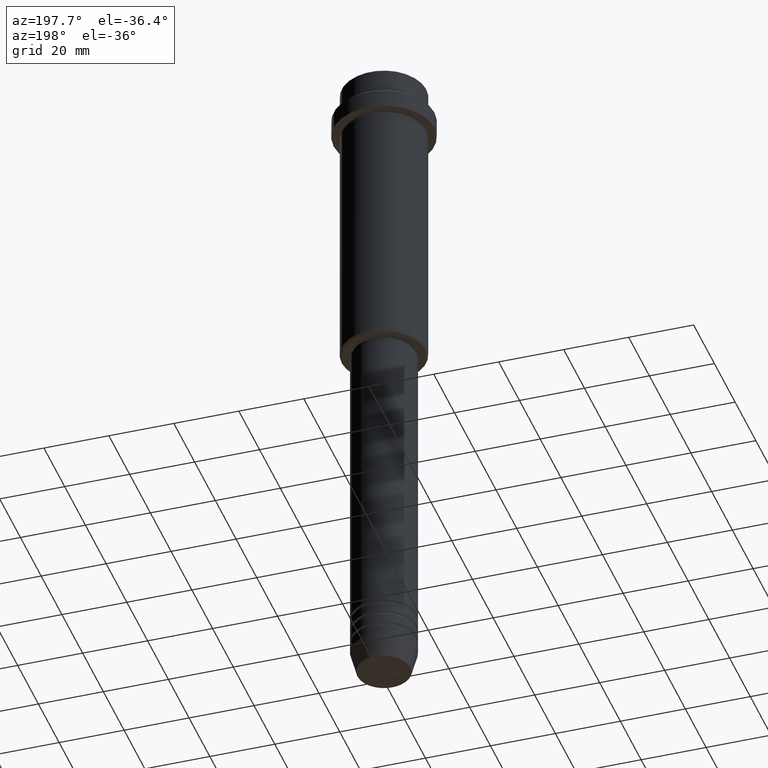
[diagram: clean part render]
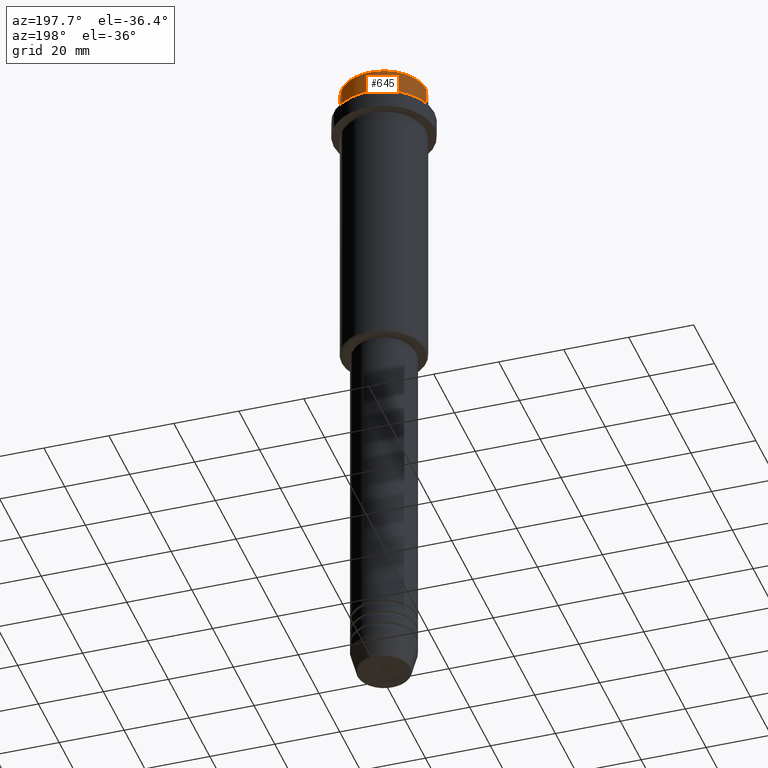
[diagram: same view with one face highlighted and labeled with its STEP entity id]
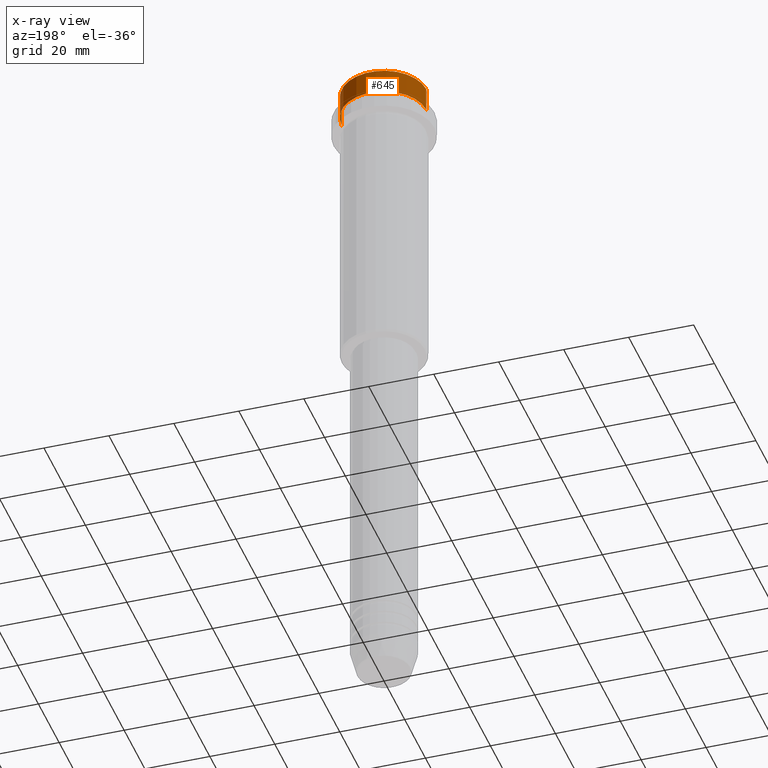
[diagram: x-ray of the same camera — body ghosted, the highlighted face saturated]
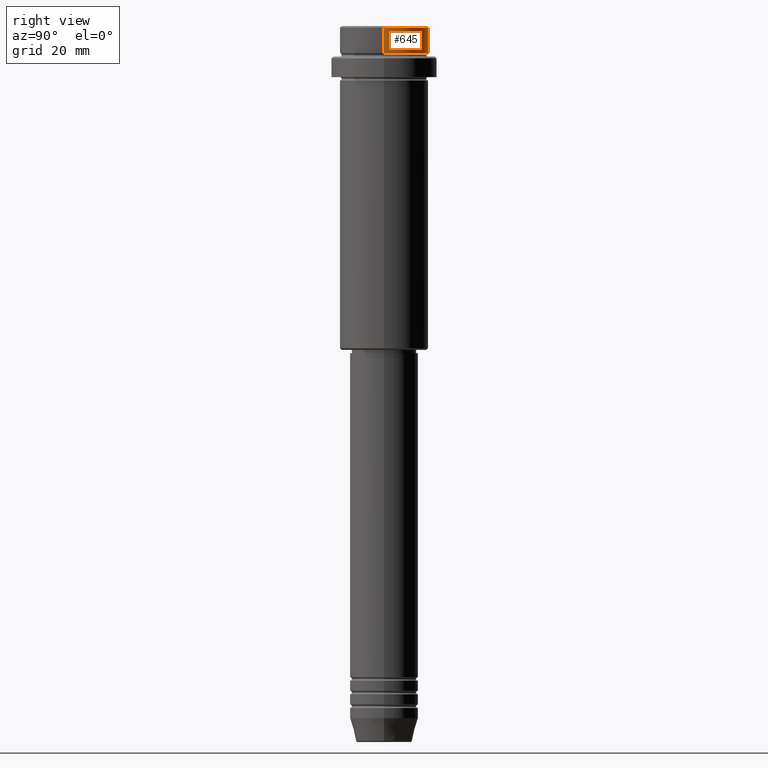
[diagram: same view with one face highlighted and labeled with its STEP entity id]
A machine part, auxiliary view. The second image highlights one B-rep face of the part: STEP entity #645.
The next image is the same camera in x-ray: the body ghosted, the highlighted face saturated — about 0% of this face is hidden behind the body in this view.
A second angle (right view) of the same face is appended — the face is thin or edge-on in the first view.
In plain terms, the highlighted cylindrical surface (partial cylindrical patch) has radius 13 mm, axis along (-0, -0, 1).
Its self-contained STEP definition (entity closure, byte-faithful):
#46 = CARTESIAN_POINT ( 'NONE',  ( -12.99999999999999822, 1.592040838891558898E-15, -0.5000000000000316414 ) ) ;
#49 = DIRECTION ( 'NONE',  ( -0.000000000000000000, -0.000000000000000000, 1.000000000000000000 ) ) ;
#87 = DIRECTION ( 'NONE',  ( -0.000000000000000000, -0.000000000000000000, 1.000000000000000000 ) ) ;
#110 = ORIENTED_EDGE ( 'NONE', *, *, #1349, .T. ) ;
#186 = CARTESIAN_POINT ( 'NONE',  ( 0.000000000000000000, 0.000000000000000000, -7.999999999999998224 ) ) ;
#230 = ORIENTED_EDGE ( 'NONE', *, *, #295, .T. ) ;
#294 = EDGE_CURVE ( 'NONE', #873, #827, #1241, .T. ) ;
#295 = EDGE_CURVE ( 'NONE', #1110, #1239, #462, .T. ) ;
#421 = CARTESIAN_POINT ( 'NONE',  ( 12.99999999999999822, 0.000000000000000000, -7.999999999999998224 ) ) ;
#429 = ORIENTED_EDGE ( 'NONE', *, *, #1192, .T. ) ;
#462 = LINE ( 'NONE', #1037, #702 ) ;
#500 = CARTESIAN_POINT ( 'NONE',  ( 0.000000000000000000, 0.000000000000000000, -0.5000000000000316414 ) ) ;
#559 = FACE_OUTER_BOUND ( 'NONE', #742, .T. ) ;
#575 = DIRECTION ( 'NONE',  ( -0.000000000000000000, -0.000000000000000000, 1.000000000000000000 ) ) ;
#578 = ORIENTED_EDGE ( 'NONE', *, *, #294, .F. ) ;
#618 = CARTESIAN_POINT ( 'NONE',  ( -12.99999999999999822, 1.592040838891558898E-15, -7.999999999999998224 ) ) ;
#628 = DIRECTION ( 'NONE',  ( 1.000000000000000000, 0.000000000000000000, 0.000000000000000000 ) ) ;
#645 = ADVANCED_FACE ( 'NONE', ( #559 ), #999, .T. ) ;
#681 = VECTOR ( 'NONE', #49, 1000.000000000000000 ) ;
#701 = AXIS2_PLACEMENT_3D ( 'NONE', #500, #1237, #718 ) ;
#702 = VECTOR ( 'NONE', #575, 1000.000000000000000 ) ;
#715 = CARTESIAN_POINT ( 'NONE',  ( 12.99999999999999822, 0.000000000000000000, 0.000000000000000000 ) ) ;
#718 = DIRECTION ( 'NONE',  ( 1.000000000000000000, 0.000000000000000000, 0.000000000000000000 ) ) ;
#742 = EDGE_LOOP ( 'NONE', ( #110, #230, #429, #578 ) ) ;
#784 = DIRECTION ( 'NONE',  ( 1.000000000000000000, 0.000000000000000000, 0.000000000000000000 ) ) ;
#827 = VERTEX_POINT ( 'NONE', #1286 ) ;
#873 = VERTEX_POINT ( 'NONE', #421 ) ;
#892 = CARTESIAN_POINT ( 'NONE',  ( 0.000000000000000000, 0.000000000000000000, 0.000000000000000000 ) ) ;
#950 = CIRCLE ( 'NONE', #1065, 12.99999999999999822 ) ;
#999 = CYLINDRICAL_SURFACE ( 'NONE', #1066, 12.99999999999999822 ) ;
#1037 = CARTESIAN_POINT ( 'NONE',  ( -12.99999999999999822, 1.592040838891558898E-15, 0.000000000000000000 ) ) ;
#1065 = AXIS2_PLACEMENT_3D ( 'NONE', #186, #87, #628 ) ;
#1066 = AXIS2_PLACEMENT_3D ( 'NONE', #892, #1323, #784 ) ;
#1110 = VERTEX_POINT ( 'NONE', #618 ) ;
#1192 = EDGE_CURVE ( 'NONE', #1239, #827, #1222, .T. ) ;
#1222 = CIRCLE ( 'NONE', #701, 12.99999999999999822 ) ;
#1237 = DIRECTION ( 'NONE',  ( 0.000000000000000000, 0.000000000000000000, -1.000000000000000000 ) ) ;
#1239 = VERTEX_POINT ( 'NONE', #46 ) ;
#1241 = LINE ( 'NONE', #715, #681 ) ;
#1286 = CARTESIAN_POINT ( 'NONE',  ( 12.99999999999999822, 0.000000000000000000, -0.5000000000000316414 ) ) ;
#1323 = DIRECTION ( 'NONE',  ( -0.000000000000000000, -0.000000000000000000, 1.000000000000000000 ) ) ;
#1349 = EDGE_CURVE ( 'NONE', #873, #1110, #950, .T. ) ;